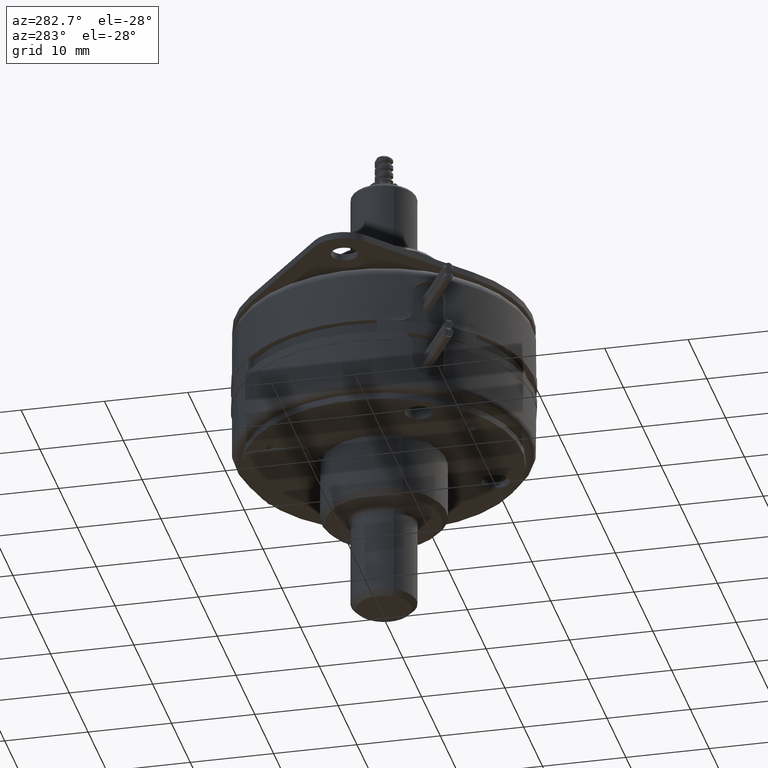
[diagram: clean part render]
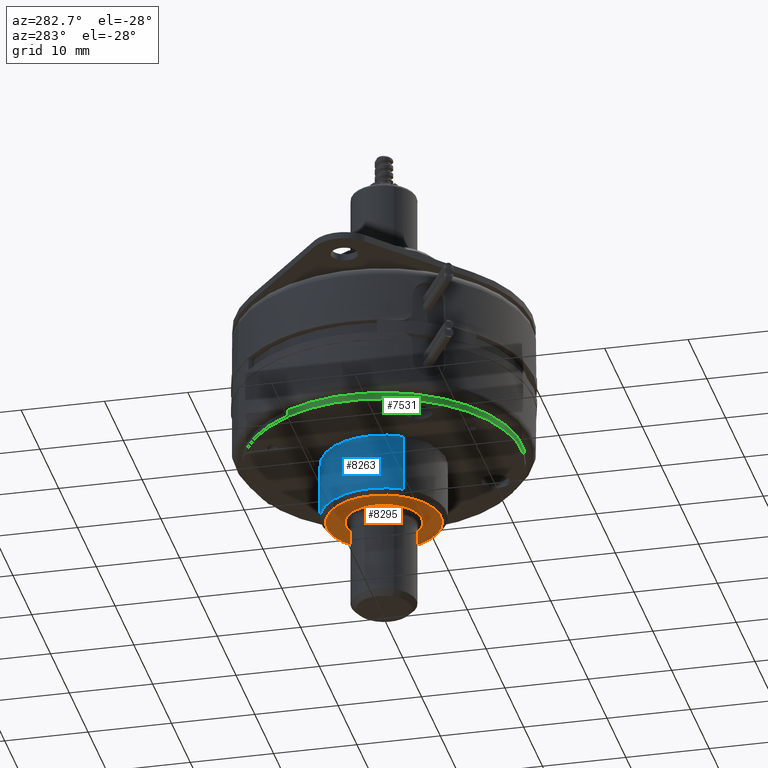
[diagram: same view with three faces highlighted in distinct colors, each labeled with its STEP entity id]
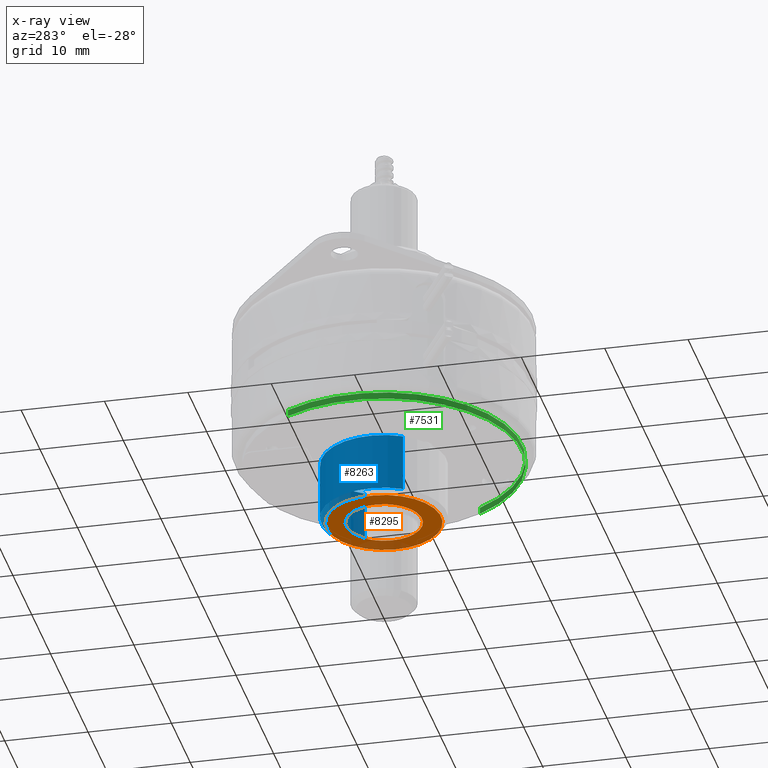
[diagram: x-ray of the same camera — body ghosted, the three highlighted faces saturated]
A machine part, auxiliary view with three faces highlighted in distinct colors.
The next image is the same camera in x-ray (body ghosted, the three faces saturated) — at least one of them is partly hidden behind the body in this view.
Their STEP definitions:

[orange] entity #8295 — the highlighted planar face has unit normal (0, 0, 1).
#8059=CARTESIAN_POINT('',(0.E0,0.E0,-4.5E-1));
#8060=DIRECTION('',(0.E0,0.E0,-1.E0));
#8061=DIRECTION('',(0.E0,1.E0,0.E0));
#8062=AXIS2_PLACEMENT_3D('',#8059,#8060,#8061);
#8064=CARTESIAN_POINT('',(0.E0,0.E0,-4.5E-1));
#8065=DIRECTION('',(0.E0,0.E0,-1.E0));
#8066=DIRECTION('',(0.E0,-1.E0,0.E0));
#8067=AXIS2_PLACEMENT_3D('',#8064,#8065,#8066);
#8069=CARTESIAN_POINT('',(0.E0,0.E0,-4.5E-1));
#8070=DIRECTION('',(0.E0,0.E0,1.E0));
#8071=DIRECTION('',(0.E0,1.E0,0.E0));
#8072=AXIS2_PLACEMENT_3D('',#8069,#8070,#8071);
#8074=CARTESIAN_POINT('',(0.E0,0.E0,-4.5E-1));
#8075=DIRECTION('',(0.E0,0.E0,1.E0));
#8076=DIRECTION('',(0.E0,-1.E0,0.E0));
#8077=AXIS2_PLACEMENT_3D('',#8074,#8075,#8076);
#8160=CARTESIAN_POINT('',(0.E0,2.7E-1,-4.5E-1));
#8161=CARTESIAN_POINT('',(0.E0,-2.7E-1,-4.5E-1));
#8162=VERTEX_POINT('',#8160);
#8163=VERTEX_POINT('',#8161);
#8164=CARTESIAN_POINT('',(0.E0,1.795E-1,-4.5E-1));
#8165=CARTESIAN_POINT('',(0.E0,-1.795E-1,-4.5E-1));
#8166=VERTEX_POINT('',#8164);
#8167=VERTEX_POINT('',#8165);
#8279=CARTESIAN_POINT('',(0.E0,0.E0,-4.5E-1));
#8280=DIRECTION('',(0.E0,0.E0,-1.E0));
#8281=DIRECTION('',(0.E0,-1.E0,0.E0));
#8282=AXIS2_PLACEMENT_3D('',#8279,#8280,#8281);
#8283=PLANE('',#8282);
#8284=ORIENTED_EDGE('',*,*,#8269,.T.);
#8286=ORIENTED_EDGE('',*,*,#8285,.T.);
#8287=EDGE_LOOP('',(#8284,#8286));
#8288=FACE_OUTER_BOUND('',#8287,.F.);
#8290=ORIENTED_EDGE('',*,*,#8289,.T.);
#8292=ORIENTED_EDGE('',*,*,#8291,.T.);
#8293=EDGE_LOOP('',(#8290,#8292));
#8294=FACE_BOUND('',#8293,.F.);
#8295=ADVANCED_FACE('',(#8288,#8294),#8283,.F.);
#8063=CIRCLE('',#8062,2.7E-1);
#8068=CIRCLE('',#8067,2.7E-1);
#8073=CIRCLE('',#8072,1.795E-1);
#8078=CIRCLE('',#8077,1.795E-1);
#8269=EDGE_CURVE('',#8162,#8163,#8063,.T.);
#8285=EDGE_CURVE('',#8163,#8162,#8068,.T.);
#8289=EDGE_CURVE('',#8166,#8167,#8073,.T.);
#8291=EDGE_CURVE('',#8167,#8166,#8078,.T.);

[blue] entity #8263 — the highlighted cylindrical surface (partial cylindrical patch) has radius 7.493 mm, axis along (0, 0, 1).
#8027=CARTESIAN_POINT('',(0.E0,0.E0,-7.5E-1));
#8028=DIRECTION('',(0.E0,0.E0,1.E0));
#8029=DIRECTION('',(0.E0,-1.E0,0.E0));
#8030=AXIS2_PLACEMENT_3D('',#8027,#8028,#8029);
#8042=DIRECTION('',(0.E0,0.E0,-1.E0));
#8043=VECTOR('',#8042,2.75E-1);
#8044=CARTESIAN_POINT('',(0.E0,-2.95E-1,-4.75E-1));
#8045=LINE('',#8044,#8043);
#8046=DIRECTION('',(0.E0,0.E0,-1.E0));
#8047=VECTOR('',#8046,2.75E-1);
#8048=CARTESIAN_POINT('',(0.E0,2.95E-1,-4.75E-1));
#8049=LINE('',#8048,#8047);
#8050=CARTESIAN_POINT('',(0.E0,0.E0,-4.75E-1));
#8051=DIRECTION('',(0.E0,0.E0,-1.E0));
#8052=DIRECTION('',(0.E0,1.E0,0.E0));
#8053=AXIS2_PLACEMENT_3D('',#8050,#8051,#8052);
#8152=CARTESIAN_POINT('',(0.E0,2.95E-1,-7.5E-1));
#8153=CARTESIAN_POINT('',(0.E0,-2.95E-1,-7.5E-1));
#8154=VERTEX_POINT('',#8152);
#8155=VERTEX_POINT('',#8153);
#8156=CARTESIAN_POINT('',(0.E0,2.95E-1,-4.75E-1));
#8157=VERTEX_POINT('',#8156);
#8158=CARTESIAN_POINT('',(0.E0,-2.95E-1,-4.75E-1));
#8159=VERTEX_POINT('',#8158);
#8251=CARTESIAN_POINT('',(0.E0,0.E0,3.98E-2));
#8252=DIRECTION('',(0.E0,0.E0,-1.E0));
#8253=DIRECTION('',(0.E0,-1.E0,0.E0));
#8254=AXIS2_PLACEMENT_3D('',#8251,#8252,#8253);
#8255=CYLINDRICAL_SURFACE('',#8254,2.95E-1);
#8256=ORIENTED_EDGE('',*,*,#8241,.T.);
#8257=ORIENTED_EDGE('',*,*,#8227,.F.);
#8258=ORIENTED_EDGE('',*,*,#8245,.F.);
#8260=ORIENTED_EDGE('',*,*,#8259,.F.);
#8261=EDGE_LOOP('',(#8256,#8257,#8258,#8260));
#8262=FACE_OUTER_BOUND('',#8261,.F.);
#8263=ADVANCED_FACE('',(#8262),#8255,.T.);
#8031=CIRCLE('',#8030,2.95E-1);
#8054=CIRCLE('',#8053,2.95E-1);
#8227=EDGE_CURVE('',#8155,#8154,#8031,.T.);
#8241=EDGE_CURVE('',#8157,#8154,#8049,.T.);
#8245=EDGE_CURVE('',#8159,#8155,#8045,.T.);
#8259=EDGE_CURVE('',#8157,#8159,#8054,.T.);

[green] entity #7531 — the highlighted cylindrical surface (partial cylindrical patch) has radius 16.5735 mm, axis along (0, 0, -1).
#6932=CARTESIAN_POINT('',(0.E0,0.E0,0.E0));
#6933=DIRECTION('',(0.E0,0.E0,1.E0));
#6934=DIRECTION('',(-1.E0,0.E0,0.E0));
#6935=AXIS2_PLACEMENT_3D('',#6932,#6933,#6934);
#7067=DIRECTION('',(0.E0,0.E0,-1.E0));
#7068=VECTOR('',#7067,3.2E-2);
#7069=CARTESIAN_POINT('',(-6.525E-1,0.E0,3.2E-2));
#7070=LINE('',#7069,#7068);
#7071=DIRECTION('',(0.E0,0.E0,-1.E0));
#7072=VECTOR('',#7071,3.2E-2);
#7073=CARTESIAN_POINT('',(6.525E-1,0.E0,3.2E-2));
#7074=LINE('',#7073,#7072);
#7080=CARTESIAN_POINT('',(0.E0,0.E0,3.2E-2));
#7081=DIRECTION('',(0.E0,0.E0,-1.E0));
#7082=DIRECTION('',(1.E0,0.E0,0.E0));
#7083=AXIS2_PLACEMENT_3D('',#7080,#7081,#7082);
#7308=CARTESIAN_POINT('',(6.525E-1,0.E0,0.E0));
#7309=CARTESIAN_POINT('',(-6.525E-1,0.E0,0.E0));
#7310=VERTEX_POINT('',#7308);
#7311=VERTEX_POINT('',#7309);
#7364=CARTESIAN_POINT('',(6.525E-1,0.E0,3.2E-2));
#7365=VERTEX_POINT('',#7364);
#7366=CARTESIAN_POINT('',(-6.525E-1,0.E0,3.2E-2));
#7367=VERTEX_POINT('',#7366);
#7519=CARTESIAN_POINT('',(0.E0,0.E0,0.E0));
#7520=DIRECTION('',(0.E0,0.E0,1.E0));
#7521=DIRECTION('',(1.E0,0.E0,0.E0));
#7522=AXIS2_PLACEMENT_3D('',#7519,#7520,#7521);
#7523=CYLINDRICAL_SURFACE('',#7522,6.525E-1);
#7524=ORIENTED_EDGE('',*,*,#7433,.F.);
#7525=ORIENTED_EDGE('',*,*,#7514,.F.);
#7527=ORIENTED_EDGE('',*,*,#7526,.F.);
#7528=ORIENTED_EDGE('',*,*,#7510,.T.);
#7529=EDGE_LOOP('',(#7524,#7525,#7527,#7528));
#7530=FACE_OUTER_BOUND('',#7529,.F.);
#7531=ADVANCED_FACE('',(#7530),#7523,.T.);
#6936=CIRCLE('',#6935,6.525E-1);
#7084=CIRCLE('',#7083,6.525E-1);
#7433=EDGE_CURVE('',#7311,#7310,#6936,.T.);
#7510=EDGE_CURVE('',#7365,#7310,#7074,.T.);
#7514=EDGE_CURVE('',#7367,#7311,#7070,.T.);
#7526=EDGE_CURVE('',#7365,#7367,#7084,.T.);